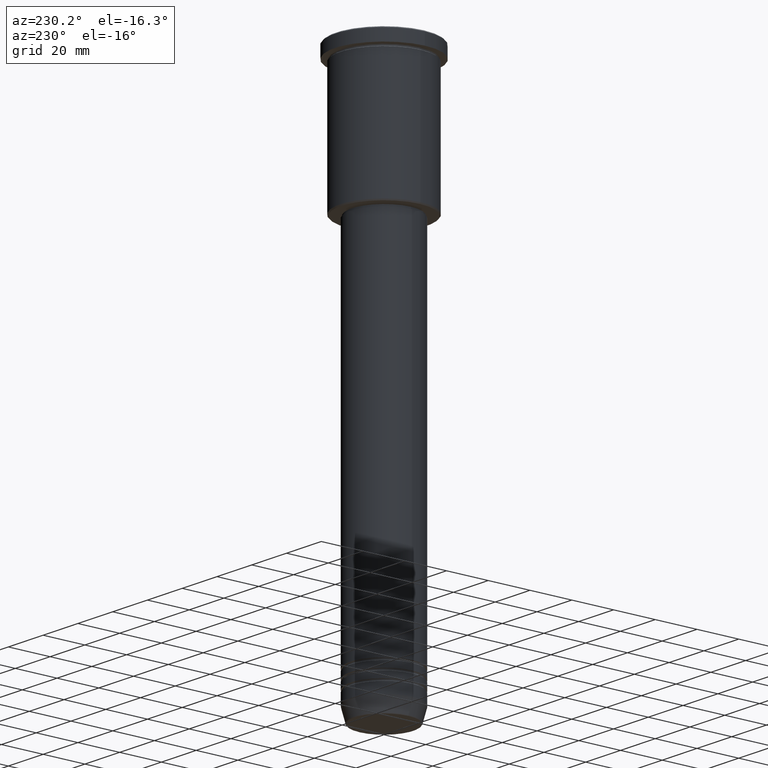
[diagram: clean part render]
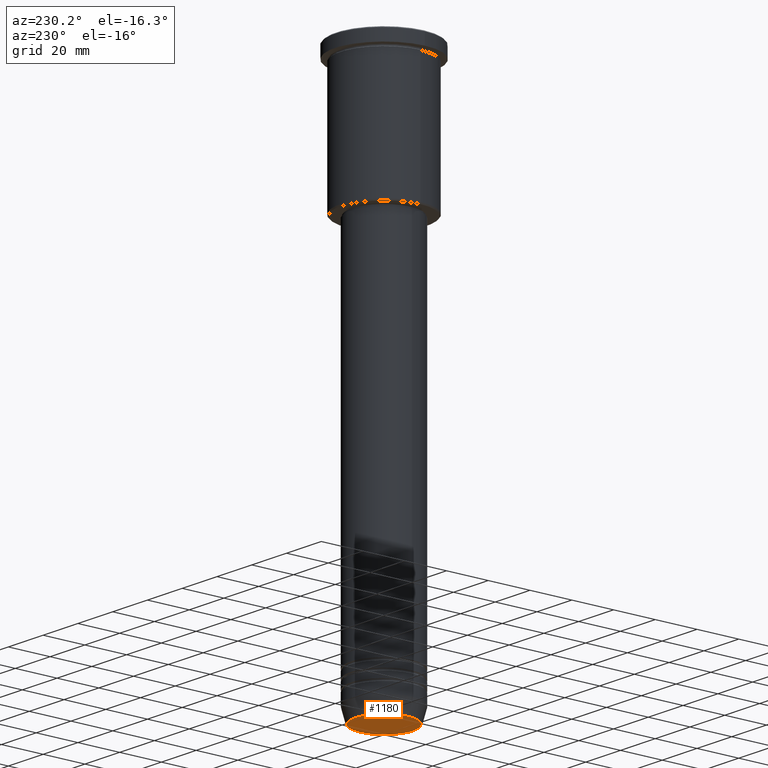
[diagram: same view with one face highlighted and labeled with its STEP entity id]
A machine part, auxiliary view. The second image highlights one B-rep face of the part: STEP entity #1180.
In plain terms, the highlighted planar face has unit normal (0, -0, 1).
Its self-contained STEP definition (entity closure, byte-faithful):
#31 = EDGE_CURVE ( 'NONE', #587, #967, #237, .T. ) ;
#134 = CARTESIAN_POINT ( 'NONE',  ( 0.000000000000000000, 0.000000000000000000, -261.0000000000000000 ) ) ;
#137 = AXIS2_PLACEMENT_3D ( 'NONE', #664, #750, #1103 ) ;
#171 = ORIENTED_EDGE ( 'NONE', *, *, #658, .T. ) ;
#192 = EDGE_LOOP ( 'NONE', ( #171, #221 ) ) ;
#221 = ORIENTED_EDGE ( 'NONE', *, *, #31, .T. ) ;
#231 = FACE_OUTER_BOUND ( 'NONE', #192, .T. ) ;
#237 = CIRCLE ( 'NONE', #850, 13.74069215899265828 ) ;
#307 = CARTESIAN_POINT ( 'NONE',  ( 0.000000000000000000, 0.000000000000000000, -261.0000000000000000 ) ) ;
#309 = CARTESIAN_POINT ( 'NONE',  ( 13.74069215899265828, 0.000000000000000000, -261.0000000000000000 ) ) ;
#418 = DIRECTION ( 'NONE',  ( 1.000000000000000000, 0.000000000000000000, 0.000000000000000000 ) ) ;
#574 = DIRECTION ( 'NONE',  ( 0.000000000000000000, 0.000000000000000000, -1.000000000000000000 ) ) ;
#584 = DIRECTION ( 'NONE',  ( 1.000000000000000000, 0.000000000000000000, 0.000000000000000000 ) ) ;
#587 = VERTEX_POINT ( 'NONE', #991 ) ;
#600 = PLANE ( 'NONE',  #877 ) ;
#658 = EDGE_CURVE ( 'NONE', #967, #587, #1045, .T. ) ;
#664 = CARTESIAN_POINT ( 'NONE',  ( 0.000000000000000000, 0.000000000000000000, -261.0000000000000000 ) ) ;
#750 = DIRECTION ( 'NONE',  ( 0.000000000000000000, 0.000000000000000000, -1.000000000000000000 ) ) ;
#850 = AXIS2_PLACEMENT_3D ( 'NONE', #307, #574, #584 ) ;
#877 = AXIS2_PLACEMENT_3D ( 'NONE', #134, #880, #418 ) ;
#880 = DIRECTION ( 'NONE',  ( 0.000000000000000000, -0.000000000000000000, 1.000000000000000000 ) ) ;
#967 = VERTEX_POINT ( 'NONE', #309 ) ;
#991 = CARTESIAN_POINT ( 'NONE',  ( -13.74069215899265828, 1.712322416342415986E-15, -261.0000000000000000 ) ) ;
#1045 = CIRCLE ( 'NONE', #137, 13.74069215899265828 ) ;
#1103 = DIRECTION ( 'NONE',  ( 1.000000000000000000, 0.000000000000000000, 0.000000000000000000 ) ) ;
#1180 = ADVANCED_FACE ( 'NONE', ( #231 ), #600, .F. ) ;